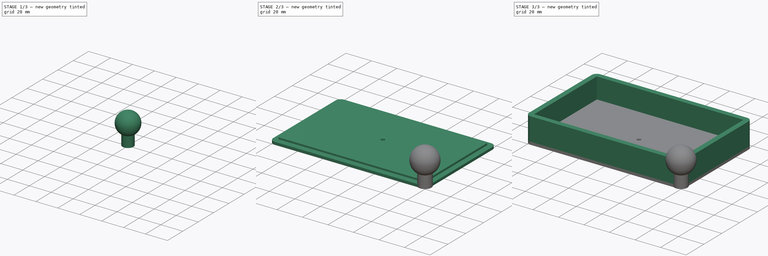
[diagram: build sequence overview — one tinted view per stage of 3, left to right]
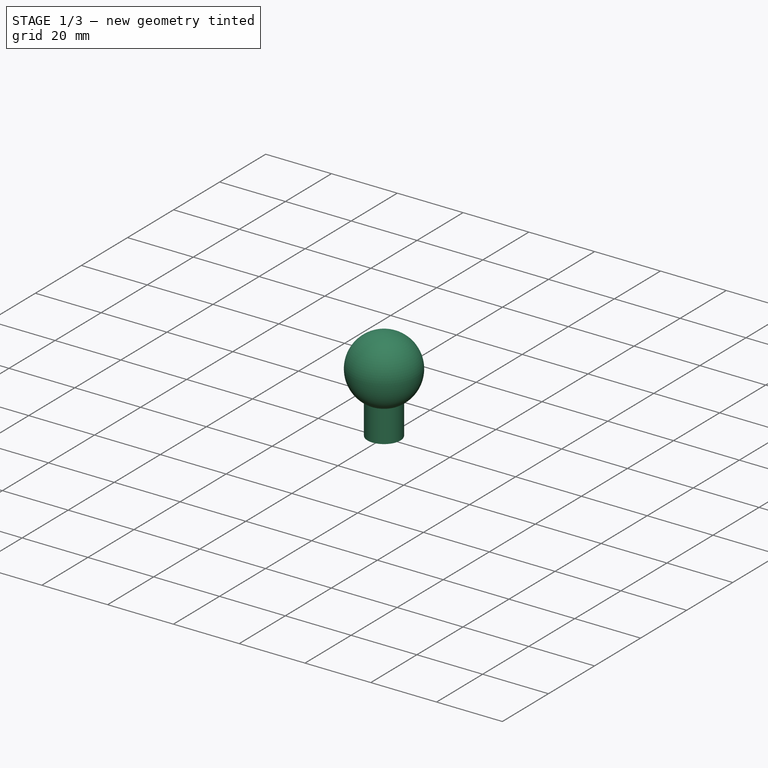
[diagram: stage 1 of 3 — iso view after this stage's code; geometry added in this stage tinted green]
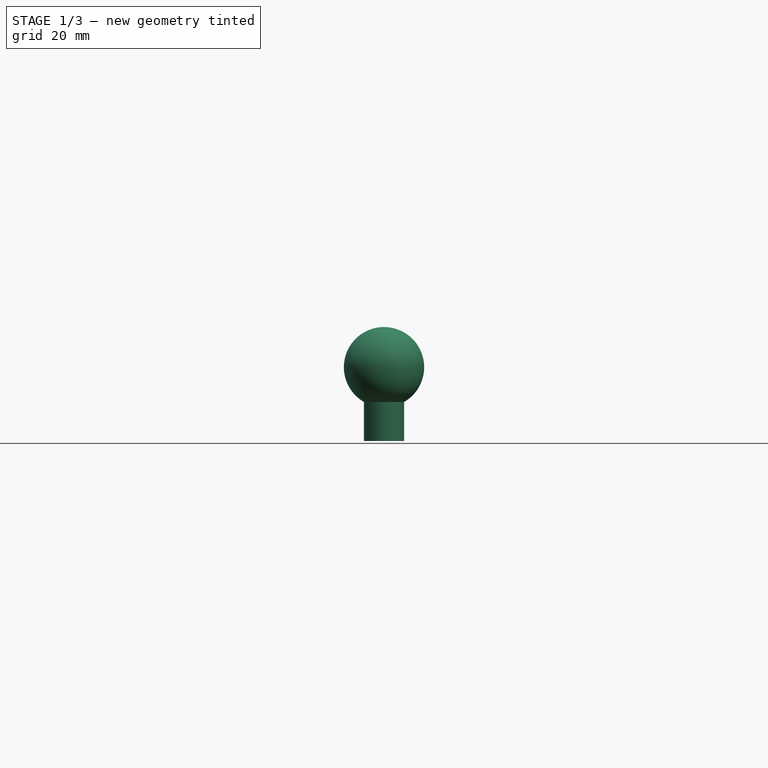
[diagram: stage 1 of 3 — front view after this stage's code; geometry added in this stage tinted green]
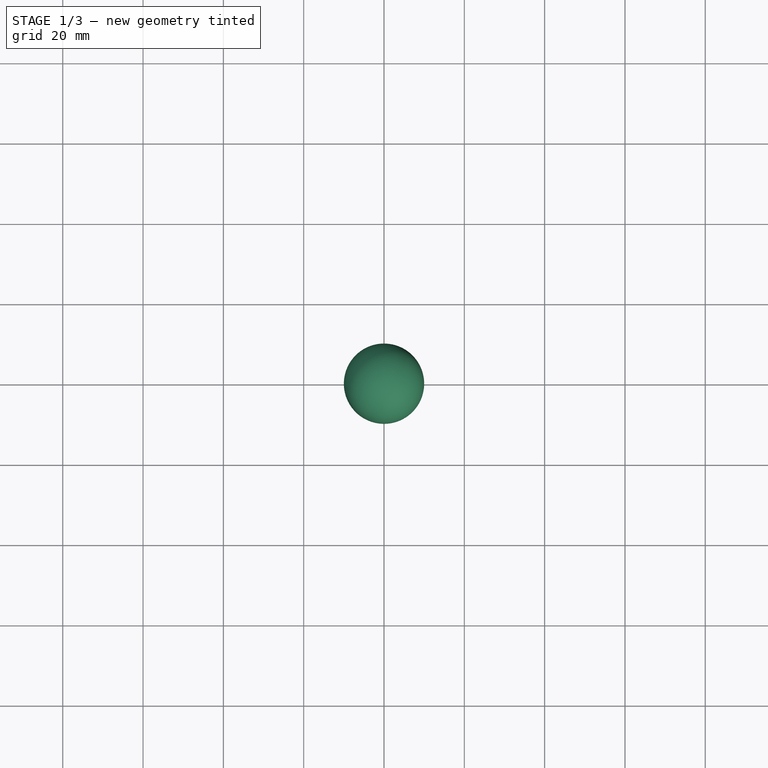
[diagram: stage 1 of 3 — top view after this stage's code; geometry added in this stage tinted green]
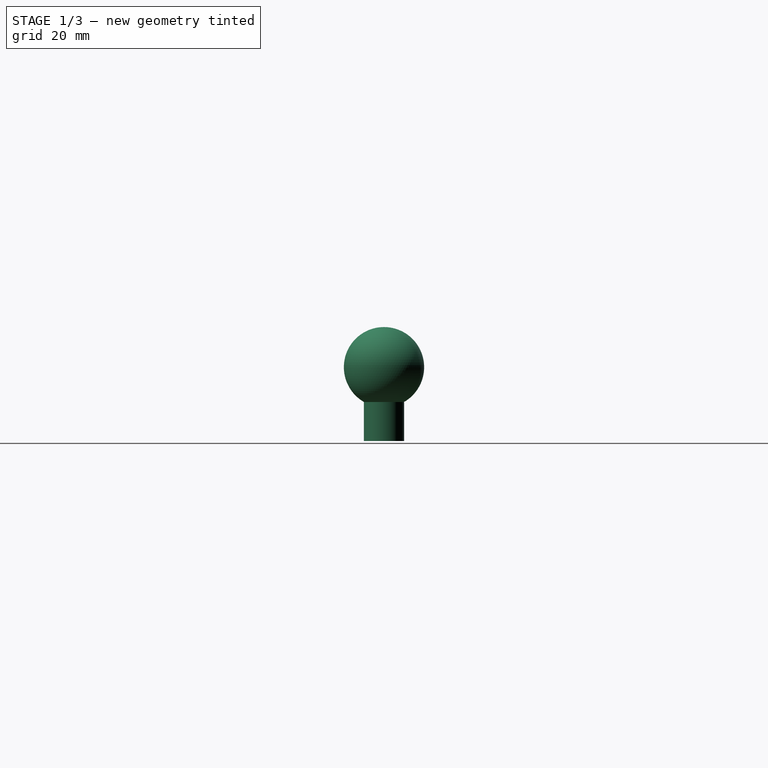
[diagram: stage 1 of 3 — right view after this stage's code; geometry added in this stage tinted green]
FCSTD DOCUMENT  (FreeCAD 0.21R33771 (Git))
Label: fakeCashBox
License: All rights reserved
LicenseURL: http://en.wikipedia.org/wiki/All_rights_reserved
objects: Sketcher::SketchObject×6, PartDesign::Pad×5, PartDesign::Body×3, Spreadsheet::Sheet×1, PartDesign::Fillet×1, PartDesign::Revolution×1
note: 23 computed .brp shape members not serialized (recipe doc carries the construction recipe); baked Part::Feature solids carry a one-line shape summary decoded from their .brp

FEATURE [PartDesign::Body] Body001  label="Body001Cover"
  Group = -> [Sketch002,Pad002,Sketch003,Pad003,Fillet]
  Origin = -> Origin001
  Placement = pos=(0,70,24) rot=(1,0,0;3.14159rad)
  Tip = -> Fillet
FEATURE [Sketcher::SketchObject] Sketch004
  FullyConstrained = true
  MapMode = 5
  Support = -> [XY_Plane002]
  expr: Constraints[2] = Spreadsheet.tightScrewR
  sketch-geometry (2):
    g0: Circle CenterX=0 CenterY=0 CenterZ=0 NormalX=0 NormalY=0 NormalZ=1 AngleXU=0 Radius=1.5
    g1: Circle CenterX=0 CenterY=0 CenterZ=0 NormalX=0 NormalY=0 NormalZ=1 AngleXU=0 Radius=5
  constraints (4):
    c: Coincident(g0,g-1)
    c: Coincident(g1,g0)
    c: Radius(g0) = 1.5
    c: Radius(g1) = 5
FEATURE [PartDesign::Pad] Pad004
  Direction = (0,0,1)
  Length = 10
  Length2 = 10
  Profile = -> Sketch004
  ReferenceAxis = -> Sketch004 [N_Axis]
  Type = 0
FEATURE [Sketcher::SketchObject] Sketch005
  FullyConstrained = false
  MapMode = 5
  Placement = pos=(0,0,0) rot=(1,0,0;1.5708rad)
  Support = -> [XZ_Plane002]
  sketch-geometry (2):
    g0: LineSegment StartX=6e-16 StartY=28.3673 StartZ=0 EndX=6e-16 EndY=8.36731 EndZ=0
    g1: ArcOfCircle CenterX=0 CenterY=18.3673 CenterZ=0 NormalX=0 NormalY=0 NormalZ=1 AngleXU=0 Radius=10 StartAngle=1.5708 EndAngle=4.71239
  constraints (6):
    c: PointOnObject(g0,g-2)
    c: Vertical(g0)
    c: PointOnObject(g1,g0)
    c: Coincident(g1,g0)
    c: Coincident(g0,g1)
    c: Radius(g1) = 10
FEATURE [PartDesign::Revolution] Revolution
  Angle = 360
  Axis = (0,2e-16,1)
  Base = (0,0,0)
  BaseFeature = -> Pad004
  Profile = -> Sketch005
  ReferenceAxis = -> Sketch005 [V_Axis]
FEATURE [PartDesign::Body] Body002  label="Body002Head"
  Group = -> [Sketch004,Pad004,Sketch005,Revolution]
  Origin = -> Origin002
  Tip = -> Revolution
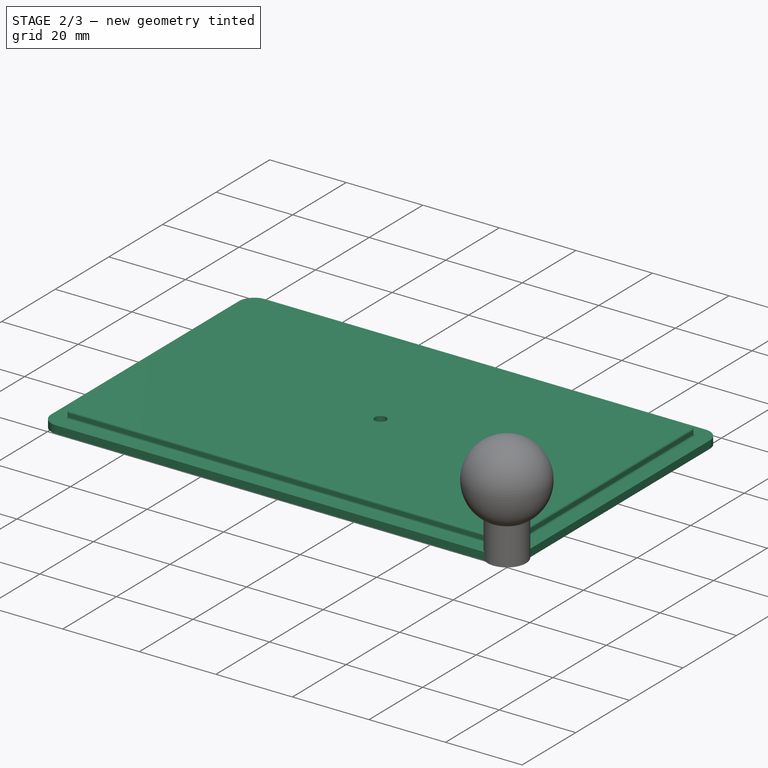
[diagram: stage 2 of 3 — iso view after this stage's code; geometry added in this stage tinted green]
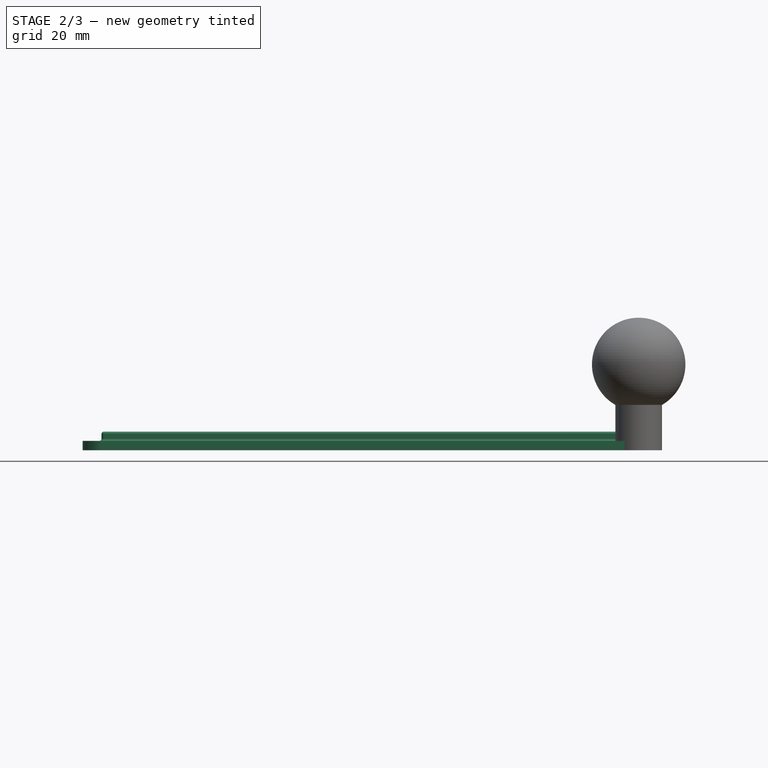
[diagram: stage 2 of 3 — front view after this stage's code; geometry added in this stage tinted green]
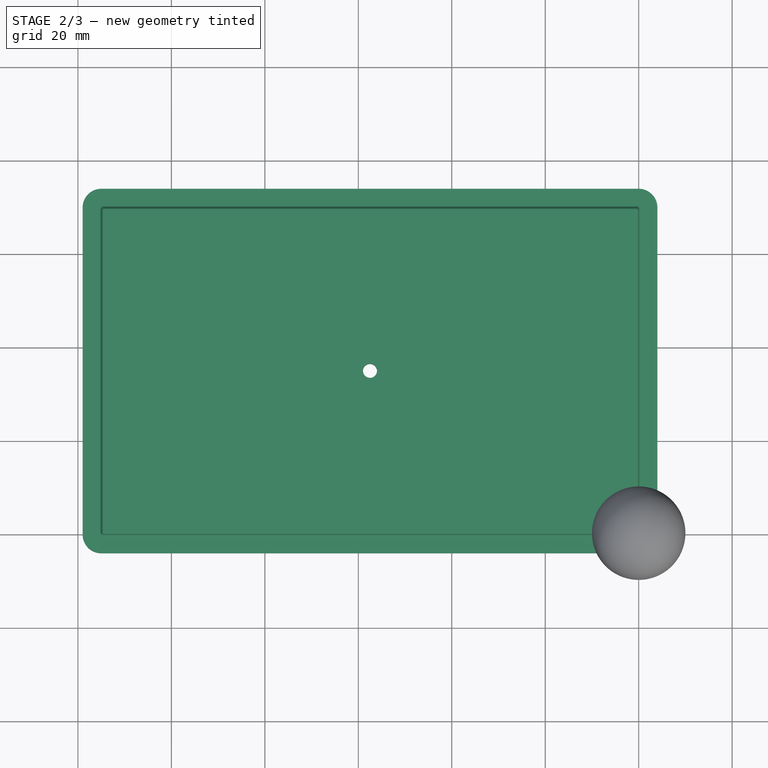
[diagram: stage 2 of 3 — top view after this stage's code; geometry added in this stage tinted green]
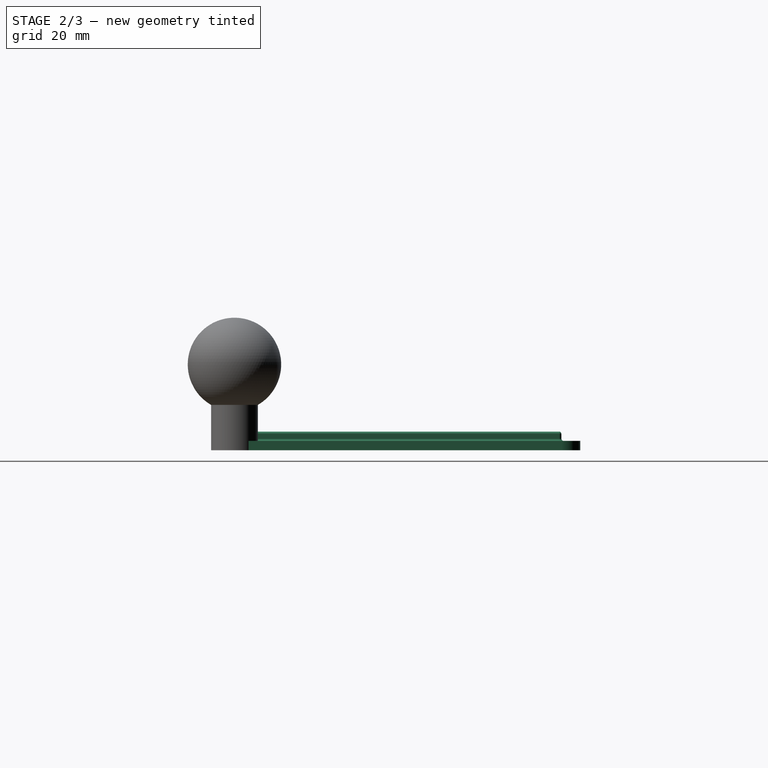
[diagram: stage 2 of 3 — right view after this stage's code; geometry added in this stage tinted green]
FEATURE [PartDesign::Body] Body
  Group = -> [Sketch,Pad,Sketch001,Pad001]
  Origin = -> Origin
  Tip = -> Pad001
FEATURE [Sketcher::SketchObject] Sketch002
  FullyConstrained = true
  MapMode = 5
  Support = -> [XY_Plane001]
  expr: Constraints[26] = Spreadsheet.thickness
  expr: Constraints[27] = Spreadsheet.thickness
  expr: Constraints[28] = Spreadsheet.thickness
  expr: Constraints[29] = Spreadsheet.thickness
  expr: Constraints[30] = Spreadsheet.height + Spreadsheet.thickness * 2
  expr: Constraints[31] = Spreadsheet.width + Spreadsheet.thickness * 2
  expr: Constraints[32] = Spreadsheet.height / 2
  expr: Constraints[33] = Spreadsheet.width / 2
  expr: Constraints[34] = Spreadsheet.tightScrewR
  expr: Constraints[8] = Spreadsheet.thickness
  expr: Constraints[9] = Spreadsheet.thickness
  sketch-geometry (13):
    g0: LineSegment StartX=-119 StartY=74 StartZ=0 EndX=4 EndY=74 EndZ=0
    g1: LineSegment StartX=4 StartY=74 StartZ=0 EndX=4 EndY=-4 EndZ=0
    g2: LineSegment StartX=4 StartY=-4 StartZ=0 EndX=-119 EndY=-4 EndZ=0
    g3: LineSegment StartX=-119 StartY=-4 StartZ=0 EndX=-119 EndY=74 EndZ=0
    g4: LineSegment StartX=-115 StartY=74 StartZ=0 EndX=0 EndY=74 EndZ=0
    g5: LineSegment StartX=4 StartY=70 StartZ=0 EndX=4 EndY=0 EndZ=0
    g6: LineSegment StartX=-8e-16 StartY=-4 StartZ=0 EndX=-115 EndY=-4 EndZ=0
    g7: LineSegment StartX=-119 StartY=6e-16 StartZ=0 EndX=-119 EndY=70 EndZ=0
    g8: ArcOfCircle CenterX=-115 CenterY=70 CenterZ=0 NormalX=0 NormalY=0 NormalZ=1 AngleXU=0 Radius=4 StartAngle=1.5708 EndAngle=3.14159
    g9: ArcOfCircle CenterX=-115 CenterY=1e-16 CenterZ=0 NormalX=0 NormalY=0 NormalZ=1 AngleXU=0 Radius=4 StartAngle=3.14159 EndAngle=4.71239
    g10: ArcOfCircle CenterX=1e-16 CenterY=70 CenterZ=0 NormalX=0 NormalY=0 NormalZ=1 AngleXU=0 Radius=4 StartAngle=-1.8e-15 EndAngle=1.5708
    g11: ArcOfCircle CenterX=0 CenterY=2e-16 CenterZ=0 NormalX=0 NormalY=0 NormalZ=1 AngleXU=0 Radius=4 StartAngle=4.71239 EndAngle=6.28319
    g12: Circle CenterX=-57.5 CenterY=35 CenterZ=0 NormalX=0 NormalY=0 NormalZ=1 AngleXU=0 Radius=1.5
  constraints (35):
    c: Coincident(g0,g1)
    c: Coincident(g1,g2)
    c: Coincident(g2,g3)
    c: Coincident(g3,g0)
    c: Horizontal(g0)
    c: Horizontal(g2)
    c: Vertical(g1)
    c: Vertical(g3)
    c: DistanceX(g-1,g1) = 4
    c: DistanceY(g1,g-1) = 4
    c: Horizontal(g4)
    c: Horizontal(g6)
    c: Vertical(g5)
    c: Vertical(g7)
    c: Tangent(g4,g8) = 1.5708
    c: Tangent(g7,g8) = 1.5708
    c: Tangent(g6,g9) = 1.5708
    c: Tangent(g7,g9) = 1.5708
    c: Tangent(g4,g10) = 1.5708
    c: Tangent(g5,g10) = 1.5708
    c: Tangent(g5,g11) = 1.5708
    c: Tangent(g6,g11) = 1.5708
    c: PointOnObject(g5,g1)
    c: PointOnObject(g4,g0)
    c: PointOnObject(g7,g3)
    c: PointOnObject(g6,g2)
    c: Radius(g11) = 4
    c: Radius(g10) = 4
    c: Radius(g8) = 4
    c: Radius(g9) = 4
    c: DistanceY(g1,g1) = 78
    c: DistanceX(g0,g0) = 123
    c: DistanceY(g11,g12) = 35
    c: DistanceX(g12,g11) = 57.5
    c: Radius(g12) = 1.5
FEATURE [PartDesign::Pad] Pad002
  Direction = (0,0,1)
  Length = 2
  Length2 = 10
  Profile = -> Sketch002
  ReferenceAxis = -> Sketch002 [N_Axis]
  Type = 0
FEATURE [Sketcher::SketchObject] Sketch003
  FullyConstrained = true
  MapMode = 5
  Support = -> [XY_Plane001]
  expr: Constraints[10] = Spreadsheet.width - Spreadsheet.delta
  expr: Constraints[11] = Spreadsheet.height / 2
  expr: Constraints[12] = Spreadsheet.width / 2
  expr: Constraints[13] = Spreadsheet.tightScrewR
  expr: Constraints[9] = Spreadsheet.height - Spreadsheet.delta
  sketch-geometry (5):
    g0: LineSegment StartX=-114.95 StartY=69.95 StartZ=0 EndX=0 EndY=69.95 EndZ=0
    g1: LineSegment StartX=0 StartY=69.95 StartZ=0 EndX=0 EndY=0 EndZ=0
    g2: LineSegment StartX=0 StartY=0 StartZ=0 EndX=-114.95 EndY=0 EndZ=0
    g3: LineSegment StartX=-114.95 StartY=0 StartZ=0 EndX=-114.95 EndY=69.95 EndZ=0
    g4: Circle CenterX=-57.5 CenterY=35 CenterZ=0 NormalX=0 NormalY=0 NormalZ=1 AngleXU=0 Radius=1.5
  constraints (14):
    c: Coincident(g0,g1)
    c: Coincident(g1,g2)
    c: Coincident(g2,g3)
    c: Coincident(g3,g0)
    c: Horizontal(g0)
    c: Horizontal(g2)
    c: Vertical(g1)
    c: Vertical(g3)
    c: Coincident(g1,g-1)
    c: DistanceY(g1,g1) = 69.95
    c: DistanceX(g0,g0) = 114.95
    c: DistanceY(g1,g4) = 35
    c: DistanceX(g4,g1) = 57.5
    c: Radius(g4) = 1.5
FEATURE [PartDesign::Pad] Pad003
  BaseFeature = -> Pad002
  Direction = (0,0,1)
  Length = 4
  Length2 = 10
  Profile = -> Sketch003
  ReferenceAxis = -> Sketch003 [N_Axis]
  Type = 0
  expr: Length = Spreadsheet.thickness
FEATURE [PartDesign::Fillet] Fillet
  Base = -> Pad003 [Face15,Face12,Face14,Face13]
  BaseFeature = -> Pad003
  Radius = 0.5
  SupportTransform = false
  UseAllEdges = false
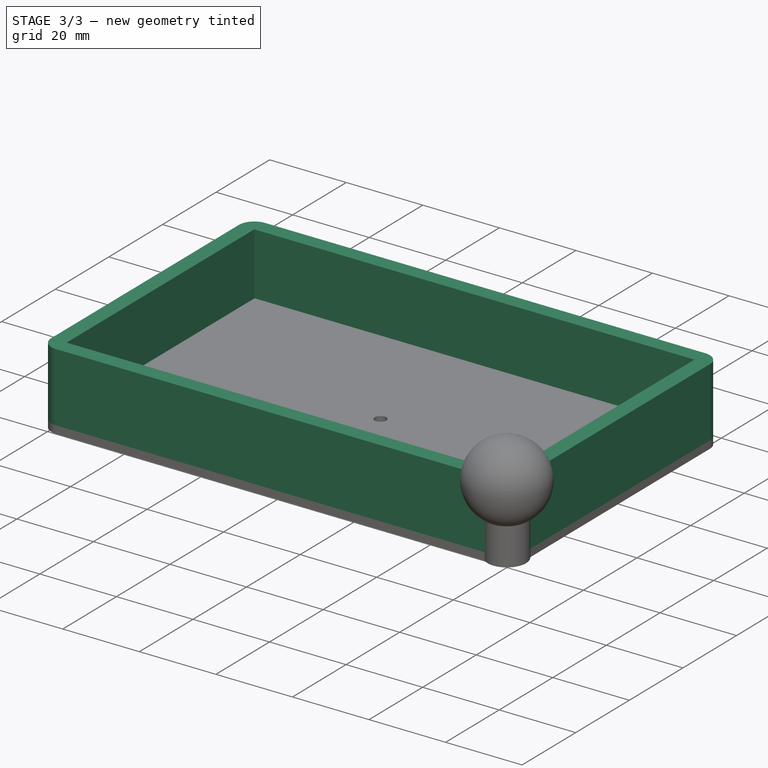
[diagram: stage 3 of 3 — iso view after this stage's code; geometry added in this stage tinted green]
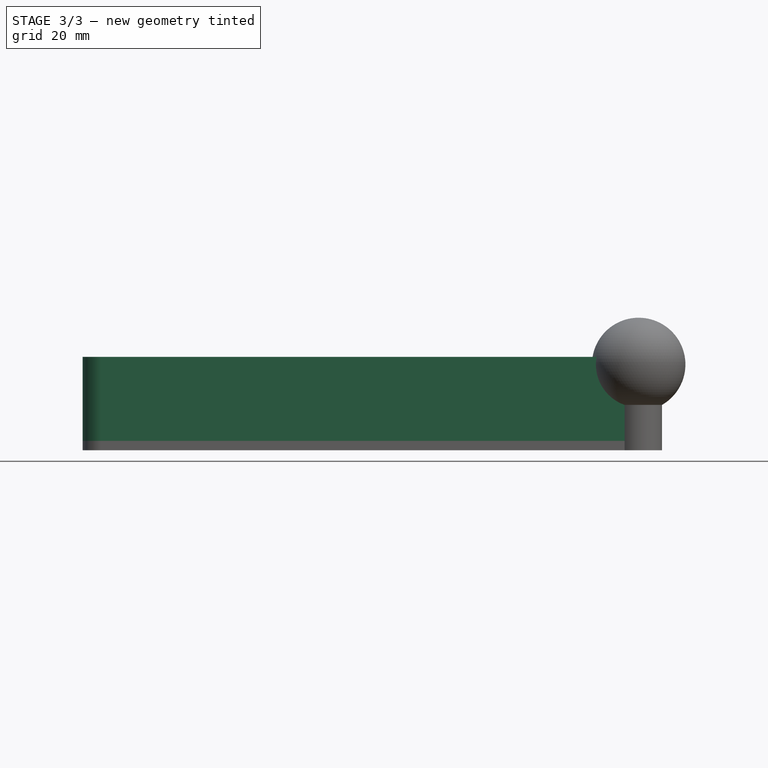
[diagram: stage 3 of 3 — front view after this stage's code; geometry added in this stage tinted green]
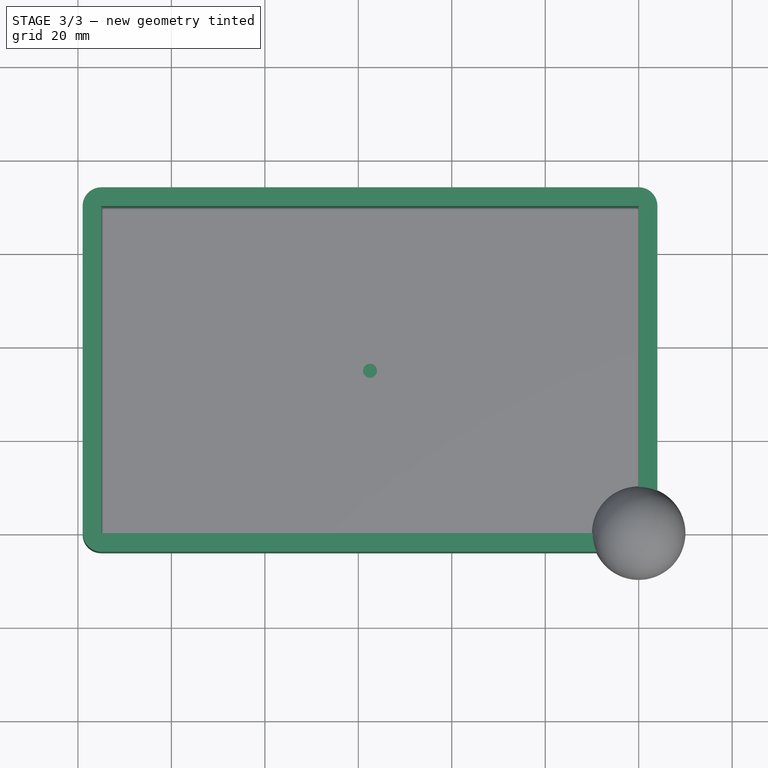
[diagram: stage 3 of 3 — top view after this stage's code; geometry added in this stage tinted green]
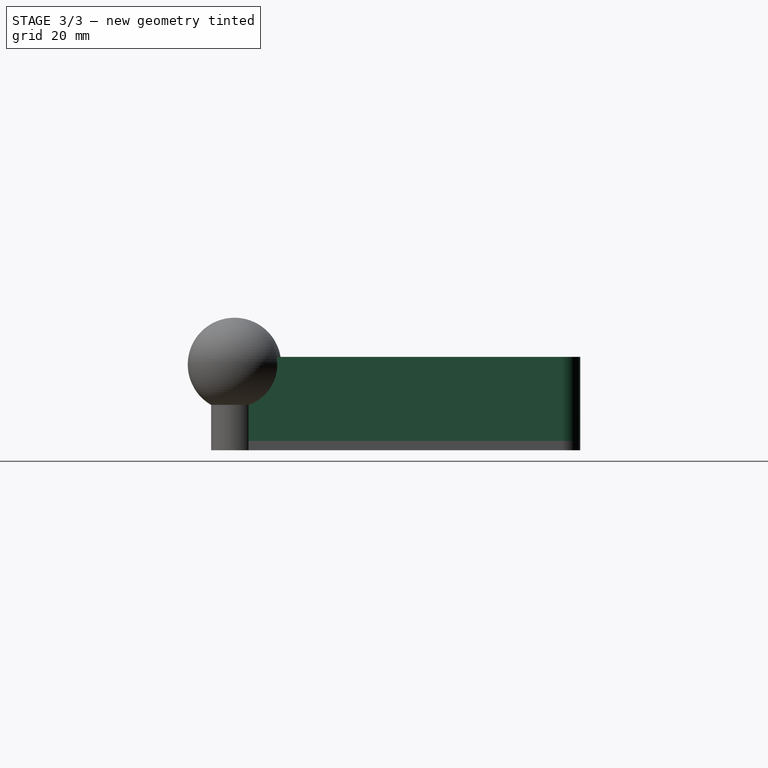
[diagram: stage 3 of 3 — right view after this stage's code; geometry added in this stage tinted green]
FEATURE [Sketcher::SketchObject] Sketch
  FullyConstrained = true
  MapMode = 5
  Support = -> [XY_Plane]
  expr: Constraints[10] = Spreadsheet.width
  expr: Constraints[19] = Spreadsheet.thickness
  expr: Constraints[20] = Spreadsheet.thickness
  expr: Constraints[21] = Spreadsheet.thickness
  expr: Constraints[22] = Spreadsheet.thickness
  expr: Constraints[39] = Spreadsheet.thickness
  expr: Constraints[40] = Spreadsheet.thickness
  expr: Constraints[41] = Spreadsheet.thickness
  expr: Constraints[42] = Spreadsheet.thickness
  expr: Constraints[9] = Spreadsheet.height
  sketch-geometry (16):
    g0: LineSegment StartX=-115 StartY=70 StartZ=0 EndX=0 EndY=70 EndZ=0
    g1: LineSegment StartX=0 StartY=70 StartZ=0 EndX=0 EndY=0 EndZ=0
    g2: LineSegment StartX=0 StartY=0 StartZ=0 EndX=-115 EndY=0 EndZ=0
    g3: LineSegment StartX=-115 StartY=0 StartZ=0 EndX=-115 EndY=70 EndZ=0
    g4: LineSegment StartX=-119 StartY=74 StartZ=0 EndX=4 EndY=74 EndZ=0
    g5: LineSegment StartX=4 StartY=74 StartZ=0 EndX=4 EndY=-4 EndZ=0
    g6: LineSegment StartX=4 StartY=-4 StartZ=0 EndX=-119 EndY=-4 EndZ=0
    g7: LineSegment StartX=-119 StartY=-4 StartZ=0 EndX=-119 EndY=74 EndZ=0
    g8: LineSegment StartX=-115 StartY=74 StartZ=0 EndX=0 EndY=74 EndZ=0
    g9: LineSegment StartX=4 StartY=70 StartZ=0 EndX=4 EndY=0 EndZ=0
    g10: LineSegment StartX=-6e-16 StartY=-4 StartZ=0 EndX=-115 EndY=-4 EndZ=0
    g11: LineSegment StartX=-119 StartY=-2.5e-15 StartZ=0 EndX=-119 EndY=70 EndZ=0
    g12: ArcOfCircle CenterX=-115 CenterY=70 CenterZ=0 NormalX=0 NormalY=0 NormalZ=1 AngleXU=0 Radius=4 StartAngle=1.5708 EndAngle=3.14159
    g13: ArcOfCircle CenterX=-115 CenterY=4.5e-14 CenterZ=0 NormalX=0 NormalY=0 NormalZ=1 AngleXU=0 Radius=4 StartAngle=3.14159 EndAngle=4.71239
    g14: ArcOfCircle CenterX=-1e-16 CenterY=70 CenterZ=0 NormalX=0 NormalY=0 NormalZ=1 AngleXU=0 Radius=4 StartAngle=0 EndAngle=1.5708
    g15: ArcOfCircle CenterX=2e-16 CenterY=-2e-16 CenterZ=0 NormalX=0 NormalY=0 NormalZ=1 AngleXU=0 Radius=4 StartAngle=4.71239 EndAngle=6.28319
  constraints (43):
    c: Coincident(g0,g1)
    c: Coincident(g1,g2)
    c: Coincident(g2,g3)
    c: Coincident(g3,g0)
    c: Horizontal(g0)
    c: Horizontal(g2)
    c: Vertical(g1)
    c: Vertical(g3)
    c: Coincident(g1,g-1)
    c: DistanceY(g1,g1) = 70
    c: DistanceX(g0,g0) = 115
    c: Coincident(g4,g5)
    c: Coincident(g5,g6)
    c: Coincident(g6,g7)
    c: Coincident(g7,g4)
    c: Horizontal(g4)
    c: Horizontal(g6)
    c: Vertical(g5)
    c: Vertical(g7)
    c: DistanceX(g1,g5) = 4
    c: DistanceY(g5,g1) = 4
    c: DistanceY(g0,g4) = 4
    c: DistanceX(g4,g0) = 4
    c: Horizontal(g8)
    c: Horizontal(g10)
    c: Vertical(g9)
    c: Vertical(g11)
    c: Tangent(g8,g12) = 1.5708
    c: Tangent(g11,g12) = 1.5708
    c: Tangent(g10,g13) = 1.5708
    c: Tangent(g11,g13) = 1.5708
    c: Tangent(g8,g14) = 1.5708
    c: Tangent(g9,g14) = 1.5708
    c: Tangent(g9,g15) = 1.5708
    c: Tangent(g10,g15) = 1.5708
    c: PointOnObject(g9,g5)
    c: PointOnObject(g8,g4)
    c: PointOnObject(g11,g7)
    c: PointOnObject(g10,g6)
    c: Radius(g15) = 4
    c: Radius(g14) = 4
    c: Radius(g12) = 4
    c: Radius(g13) = 4
FEATURE [Spreadsheet::Sheet] Spreadsheet
  cells = A1='width; B1(width)=115; A2='height; B2(height)=70; A3='y; B3(y)=10; A4='thickness; B4(thickness)=4; A5='delta; B5(delta)=0.05; A13='tightScrewR; B13(tightScrewR)=1.5
FEATURE [PartDesign::Pad] Pad
  Direction = (0,0,1)
  Length = 20
  Length2 = 10
  Profile = -> Sketch
  ReferenceAxis = -> Sketch [N_Axis]
  Type = 0
  expr: Length = 20 mm
FEATURE [Sketcher::SketchObject] Sketch001
  FullyConstrained = true
  MapMode = 5
  Support = -> [XY_Plane]
  expr: Constraints[26] = Spreadsheet.thickness
  expr: Constraints[27] = Spreadsheet.thickness
  expr: Constraints[28] = Spreadsheet.thickness
  expr: Constraints[29] = Spreadsheet.thickness
  expr: Constraints[30] = Spreadsheet.height + Spreadsheet.thickness * 2
  expr: Constraints[31] = Spreadsheet.width + Spreadsheet.thickness * 2
  expr: Constraints[8] = Spreadsheet.thickness
  expr: Constraints[9] = Spreadsheet.thickness
  sketch-geometry (12):
    g0: LineSegment StartX=-119 StartY=74 StartZ=0 EndX=4 EndY=74 EndZ=0
    g1: LineSegment StartX=4 StartY=74 StartZ=0 EndX=4 EndY=-4 EndZ=0
    g2: LineSegment StartX=4 StartY=-4 StartZ=0 EndX=-119 EndY=-4 EndZ=0
    g3: LineSegment StartX=-119 StartY=-4 StartZ=0 EndX=-119 EndY=74 EndZ=0
    g4: LineSegment StartX=-115 StartY=74 StartZ=0 EndX=0 EndY=74 EndZ=0
    g5: LineSegment StartX=4 StartY=70 StartZ=0 EndX=4 EndY=0 EndZ=0
    g6: LineSegment StartX=-5e-16 StartY=-4 StartZ=0 EndX=-115 EndY=-4 EndZ=0
    g7: LineSegment StartX=-119 StartY=-2.5e-15 StartZ=0 EndX=-119 EndY=70 EndZ=0
    g8: ArcOfCircle CenterX=-115 CenterY=70 CenterZ=0 NormalX=0 NormalY=0 NormalZ=1 AngleXU=0 Radius=4 StartAngle=1.5708 EndAngle=3.14159
    g9: ArcOfCircle CenterX=-115 CenterY=4.5e-14 CenterZ=0 NormalX=0 NormalY=0 NormalZ=1 AngleXU=0 Radius=4 StartAngle=3.14159 EndAngle=4.71239
    g10: ArcOfCircle CenterX=-1e-16 CenterY=70 CenterZ=0 NormalX=0 NormalY=0 NormalZ=1 AngleXU=0 Radius=4 StartAngle=0 EndAngle=1.5708
    g11: ArcOfCircle CenterX=2e-16 CenterY=-2e-16 CenterZ=0 NormalX=0 NormalY=0 NormalZ=1 AngleXU=0 Radius=4 StartAngle=4.71239 EndAngle=6.28319
  constraints (32):
    c: Coincident(g0,g1)
    c: Coincident(g1,g2)
    c: Coincident(g2,g3)
    c: Coincident(g3,g0)
    c: Horizontal(g0)
    c: Horizontal(g2)
    c: Vertical(g1)
    c: Vertical(g3)
    c: DistanceX(g-1,g1) = 4
    c: DistanceY(g1,g-1) = 4
    c: Horizontal(g4)
    c: Horizontal(g6)
    c: Vertical(g5)
    c: Vertical(g7)
    c: Tangent(g4,g8) = 1.5708
    c: Tangent(g7,g8) = 1.5708
    c: Tangent(g6,g9) = 1.5708
    c: Tangent(g7,g9) = 1.5708
    c: Tangent(g4,g10) = 1.5708
    c: Tangent(g5,g10) = 1.5708
    c: Tangent(g5,g11) = 1.5708
    c: Tangent(g6,g11) = 1.5708
    c: PointOnObject(g5,g1)
    c: PointOnObject(g4,g0)
    c: PointOnObject(g7,g3)
    c: PointOnObject(g6,g2)
    c: Radius(g11) = 4
    c: Radius(g10) = 4
    c: Radius(g8) = 4
    c: Radius(g9) = 4
    c: DistanceY(g1,g1) = 78
    c: DistanceX(g0,g0) = 123
FEATURE [PartDesign::Pad] Pad001
  BaseFeature = -> Pad
  Direction = (0,0,1)
  Length = 2
  Length2 = 10
  Profile = -> Sketch001
  ReferenceAxis = -> Sketch001 [N_Axis]
  Type = 0
  expr: Length = 2
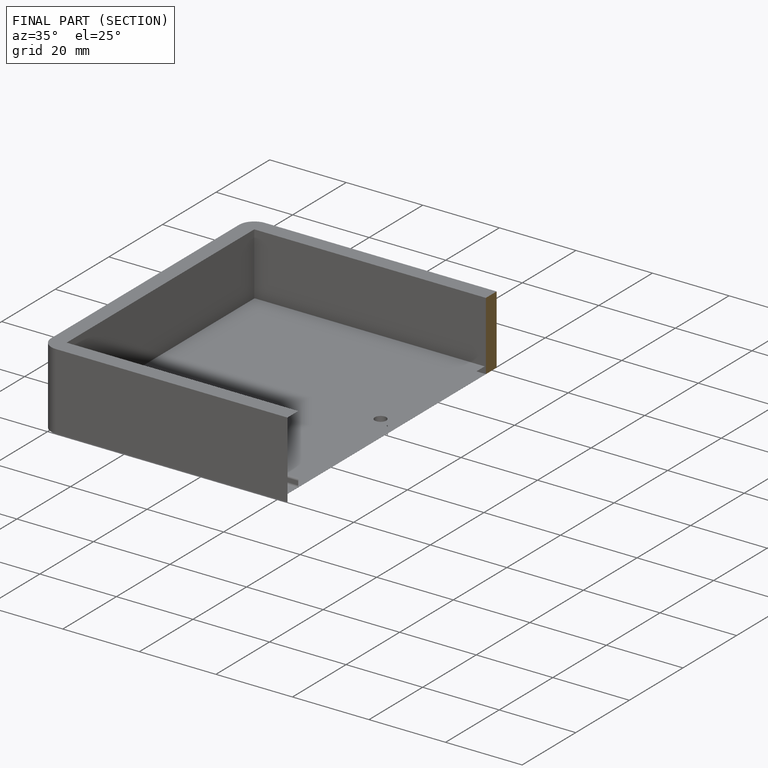
[diagram: finished part — half-section view (interior)]
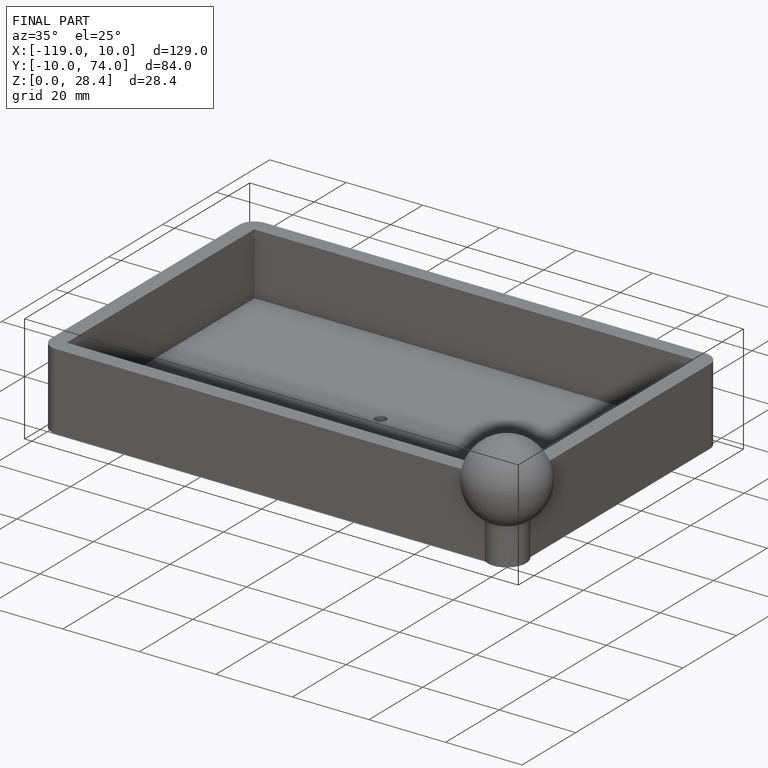
[diagram: finished part — iso view with bounding-box wireframe]
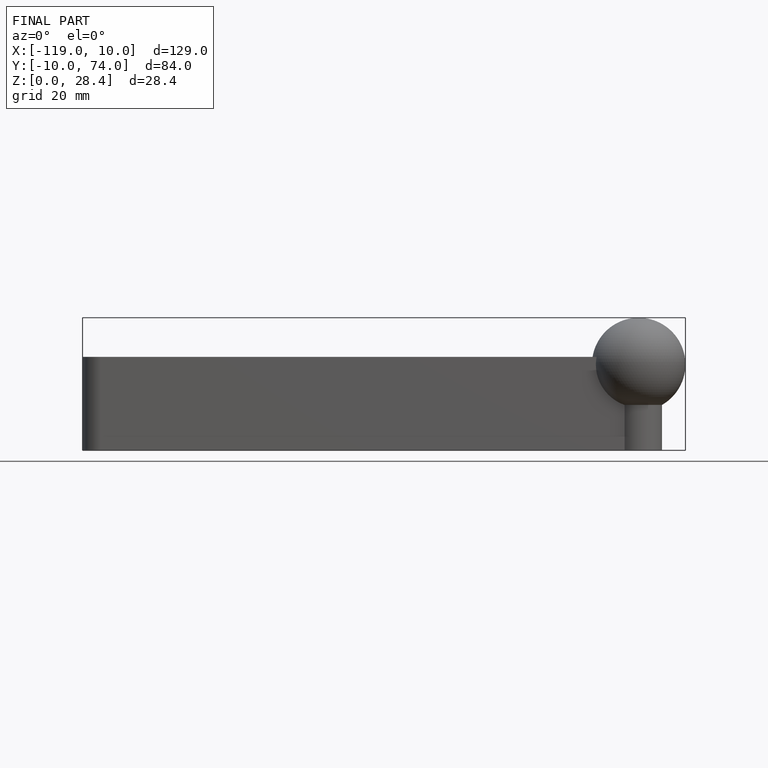
[diagram: finished part — front view with bounding-box wireframe]
